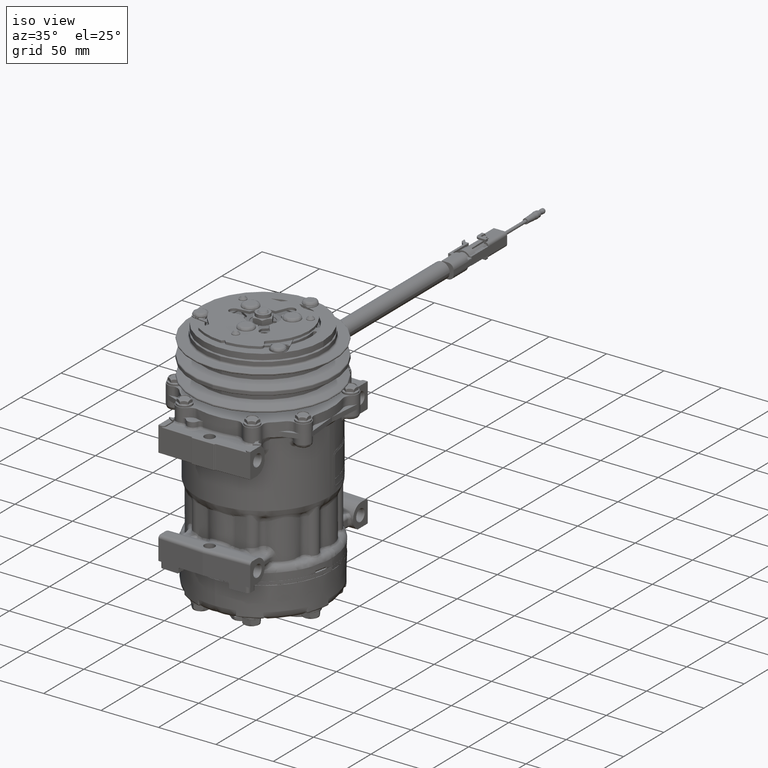
[diagram: clean part render]
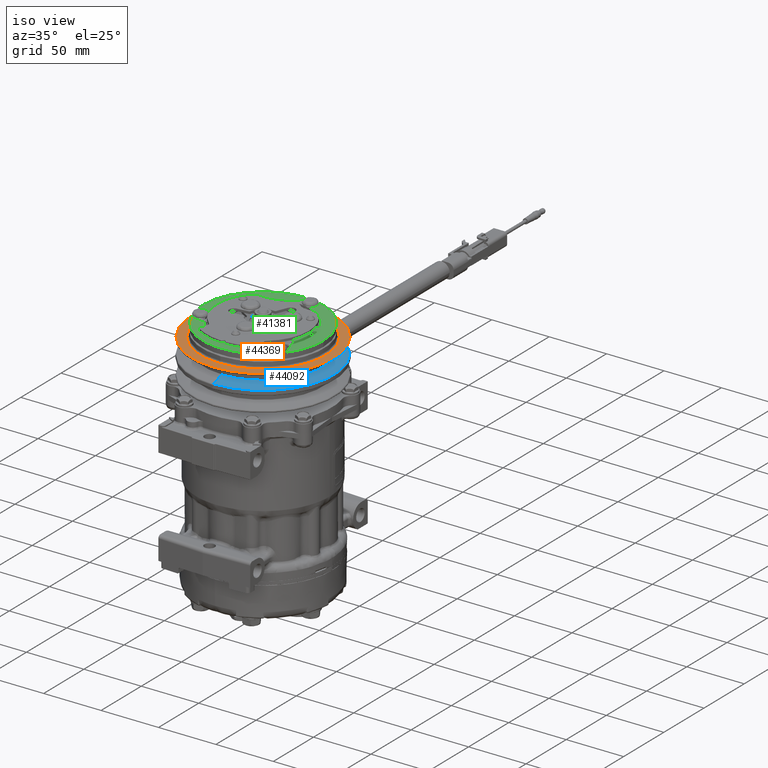
[diagram: same view with three faces highlighted in distinct colors, each labeled with its STEP entity id]
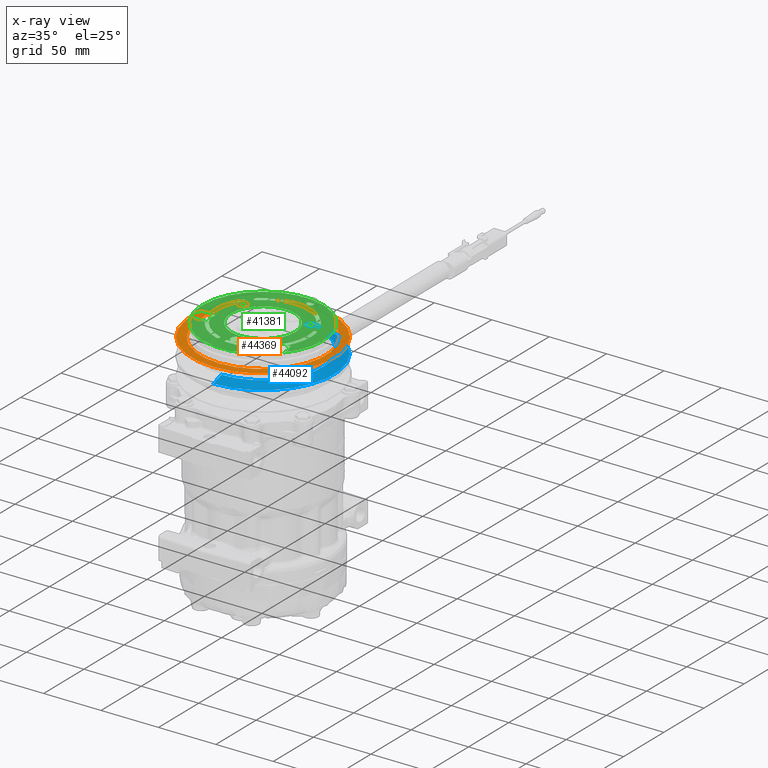
[diagram: x-ray of the same camera — body ghosted, the three highlighted faces saturated]
A machine part, iso view with three faces highlighted in distinct colors.
The next image is the same camera in x-ray (body ghosted, the three faces saturated) — at least one of them is partly hidden behind the body in this view.
Their STEP definitions:

[orange] entity #44369 — the highlighted planar face has unit normal (-0, -0, 1).
#34600 = EDGE_CURVE ( 'NONE', #34601, #34602, #100234, .T. ) ;
#34601 = VERTEX_POINT ( 'NONE', #100224 ) ;
#34602 = VERTEX_POINT ( 'NONE', #100222 ) ;
#34646 = EDGE_CURVE ( 'NONE', #34648, #34650, #100335, .T. ) ;
#34648 = VERTEX_POINT ( 'NONE', #100326 ) ;
#34650 = VERTEX_POINT ( 'NONE', #100323 ) ;
#44369 = ADVANCED_FACE ( 'NONE', ( #132145, #132135 ), #132134, .T. ) ;
#44372 = EDGE_LOOP ( 'NONE', ( #44378, #44415 ) ) ;
#44378 = ORIENTED_EDGE ( 'NONE', *, *, #44413, .T. ) ;
#44391 = EDGE_CURVE ( 'NONE', #34650, #34648, #132093, .T. ) ;
#44413 = EDGE_CURVE ( 'NONE', #34602, #34601, #132275, .T. ) ;
#44415 = ORIENTED_EDGE ( 'NONE', *, *, #34600, .T. ) ;
#44417 = EDGE_LOOP ( 'NONE', ( #44423, #44657 ) ) ;
#44423 = ORIENTED_EDGE ( 'NONE', *, *, #34646, .F. ) ;
#44657 = ORIENTED_EDGE ( 'NONE', *, *, #44391, .F. ) ;
#100222 = CARTESIAN_POINT ( 'NONE',  ( 1.018713123910724500, -54.50011513830195000, 106.4531580153178400 ) ) ;
#100224 = CARTESIAN_POINT ( 'NONE',  ( 1.018713123910717900, 54.49988486169805700, 106.4531580153180800 ) ) ;
#100227 = DIRECTION ( 'NONE',  ( 0.0000000000000000000, -1.000000000000000000, -2.291744775602386400E-015 ) ) ;
#100229 = DIRECTION ( 'NONE',  ( 3.491483361109382100E-015, 2.358328250533916200E-015, -1.000000000000000000 ) ) ;
#100231 = CARTESIAN_POINT ( 'NONE',  ( 1.018713123910719400, -0.0001151383019482032900, 106.4531580153179700 ) ) ;
#100233 = AXIS2_PLACEMENT_3D ( 'NONE', #100231, #100229, #100227 ) ;
#100234 = CIRCLE ( 'NONE', #100233, 54.50000000000002100 ) ;
#100323 = CARTESIAN_POINT ( 'NONE',  ( 1.018713123910711200, 62.09988486169804400, 106.4531580153181700 ) ) ;
#100326 = CARTESIAN_POINT ( 'NONE',  ( 1.018713123910719400, -62.10011513830193800, 106.4531580153178700 ) ) ;
#100328 = DIRECTION ( 'NONE',  ( 0.0000000000000000000, -1.000000000000000000, -2.458223283187746400E-015 ) ) ;
#100330 = DIRECTION ( 'NONE',  ( 3.491483361109382100E-015, 2.358328250533916200E-015, -1.000000000000000000 ) ) ;
#100332 = CARTESIAN_POINT ( 'NONE',  ( 1.018713123910719400, -0.0001151383019482032900, 106.4531580153180100 ) ) ;
#100333 = AXIS2_PLACEMENT_3D ( 'NONE', #100332, #100330, #100328 ) ;
#100335 = CIRCLE ( 'NONE', #100333, 62.09999999999998700 ) ;
#132093 = CIRCLE ( 'NONE', #132204, 62.09999999999998700 ) ;
#132126 = DIRECTION ( 'NONE',  ( -8.234063846773366700E-030, 1.000000000000000000, 2.358328250533916200E-015 ) ) ;
#132127 = DIRECTION ( 'NONE',  ( -3.491483361109382100E-015, -2.358328250533916200E-015, 1.000000000000000000 ) ) ;
#132129 = CARTESIAN_POINT ( 'NONE',  ( 1.018713123910719400, -54.50011513830194300, 106.4531580153178500 ) ) ;
#132131 = AXIS2_PLACEMENT_3D ( 'NONE', #132129, #132127, #132126 ) ;
#132134 = PLANE ( 'NONE',  #132131 ) ;
#132135 = FACE_OUTER_BOUND ( 'NONE', #44417, .T. ) ;
#132145 = FACE_BOUND ( 'NONE', #44372, .T. ) ;
#132152 = CARTESIAN_POINT ( 'NONE',  ( 1.018713123910719400, -0.0001151383019482032900, 106.4531580153179700 ) ) ;
#132199 = DIRECTION ( 'NONE',  ( 0.0000000000000000000, -1.000000000000000000, -2.458223283187746400E-015 ) ) ;
#132200 = DIRECTION ( 'NONE',  ( 3.491483361109382100E-015, 2.358328250533916200E-015, -1.000000000000000000 ) ) ;
#132202 = CARTESIAN_POINT ( 'NONE',  ( 1.018713123910719400, -0.0001151383019482032900, 106.4531580153180100 ) ) ;
#132204 = AXIS2_PLACEMENT_3D ( 'NONE', #132202, #132200, #132199 ) ;
#132252 = DIRECTION ( 'NONE',  ( 0.0000000000000000000, -1.000000000000000000, -2.291744775602386400E-015 ) ) ;
#132254 = DIRECTION ( 'NONE',  ( 3.491483361109382100E-015, 2.358328250533916200E-015, -1.000000000000000000 ) ) ;
#132274 = AXIS2_PLACEMENT_3D ( 'NONE', #132152, #132254, #132252 ) ;
#132275 = CIRCLE ( 'NONE', #132274, 54.50000000000002100 ) ;

[blue] entity #44092 — the highlighted conical surface has half-angle 72 deg.
#44092 = ADVANCED_FACE ( 'NONE', ( #131161 ), #131330, .T. ) ;
#44096 = EDGE_LOOP ( 'NONE', ( #44135, #44215, #44219, #44224 ) ) ;
#44135 = ORIENTED_EDGE ( 'NONE', *, *, #44848, .F. ) ;
#44215 = ORIENTED_EDGE ( 'NONE', *, *, #46504, .T. ) ;
#44219 = ORIENTED_EDGE ( 'NONE', *, *, #44828, .T. ) ;
#44224 = ORIENTED_EDGE ( 'NONE', *, *, #44281, .F. ) ;
#44281 = EDGE_CURVE ( 'NONE', #44837, #44845, #131830, .T. ) ;
#44828 = EDGE_CURVE ( 'NONE', #46507, #44845, #134158, .T. ) ;
#44837 = VERTEX_POINT ( 'NONE', #134217 ) ;
#44845 = VERTEX_POINT ( 'NONE', #134200 ) ;
#44848 = EDGE_CURVE ( 'NONE', #46505, #44837, #134199, .T. ) ;
#46504 = EDGE_CURVE ( 'NONE', #46505, #46507, #136910, .T. ) ;
#46505 = VERTEX_POINT ( 'NONE', #136906 ) ;
#46507 = VERTEX_POINT ( 'NONE', #136905 ) ;
#131161 = FACE_OUTER_BOUND ( 'NONE', #44096, .T. ) ;
#131164 = CARTESIAN_POINT ( 'NONE',  ( 1.018713123910775000, -0.0001151383018926921400, 93.17767200360782500 ) ) ;
#131326 = DIRECTION ( 'NONE',  ( 0.0000000000000000000, -1.000000000000000000, -2.469796047716656600E-015 ) ) ;
#131327 = DIRECTION ( 'NONE',  ( 3.491483361109382100E-015, 2.358328250533916200E-015, -1.000000000000000000 ) ) ;
#131329 = AXIS2_PLACEMENT_3D ( 'NONE', #131164, #131327, #131326 ) ;
#131330 = CONICAL_SURFACE ( 'NONE', #131329, 61.80901699437499300, 1.256637061435923000 ) ;
#131824 = DIRECTION ( 'NONE',  ( 0.0000000000000000000, -1.000000000000000000, -2.469796047716656600E-015 ) ) ;
#131825 = DIRECTION ( 'NONE',  ( 3.491483361109382100E-015, 2.358328250533916200E-015, -1.000000000000000000 ) ) ;
#131826 = CARTESIAN_POINT ( 'NONE',  ( 1.018713123910775000, -0.0001151383018926921400, 93.17767200360782500 ) ) ;
#131828 = AXIS2_PLACEMENT_3D ( 'NONE', #131826, #131825, #131824 ) ;
#131830 = CIRCLE ( 'NONE', #131828, 61.80901699437499300 ) ;
#134155 = DIRECTION ( 'NONE',  ( 1.078927694160149300E-015, -0.9510565162951545300, -0.3090169943749441200 ) ) ;
#134156 = VECTOR ( 'NONE', #134155, 1000.000000000000200 ) ;
#134157 = CARTESIAN_POINT ( 'NONE',  ( 1.018713123910775000, -61.80913213267688600, 93.17767200360766800 ) ) ;
#134158 = LINE ( 'NONE', #134157, #134156 ) ;
#134196 = DIRECTION ( 'NONE',  ( 9.624607088902112800E-016, 0.9510565162951560800, -0.3090169943749397400 ) ) ;
#134197 = VECTOR ( 'NONE', #134196, 999.9999999999998900 ) ;
#134198 = CARTESIAN_POINT ( 'NONE',  ( 1.018713123910767400, 61.80890185607309900, 93.17767200360798100 ) ) ;
#134199 = LINE ( 'NONE', #134198, #134197 ) ;
#134200 = CARTESIAN_POINT ( 'NONE',  ( 1.018713123910775000, -61.80913213267688600, 93.17767200360766800 ) ) ;
#134217 = CARTESIAN_POINT ( 'NONE',  ( 1.018713123910765800, 61.80890185607309900, 93.17767200360798100 ) ) ;
#136852 = CARTESIAN_POINT ( 'NONE',  ( 1.018713123910775000, -0.0001151383018926921400, 96.41501767973504400 ) ) ;
#136905 = CARTESIAN_POINT ( 'NONE',  ( 1.018713123910775000, -51.84560664111447900, 96.41501767973491600 ) ) ;
#136906 = CARTESIAN_POINT ( 'NONE',  ( 1.018713123910762300, 51.84537636451069900, 96.41501767973515800 ) ) ;
#136907 = DIRECTION ( 'NONE',  ( 0.0000000000000000000, -1.000000000000000000, -2.409082962663289000E-015 ) ) ;
#136908 = DIRECTION ( 'NONE',  ( 3.491483361109382100E-015, 2.358328250533916200E-015, -1.000000000000000000 ) ) ;
#136909 = AXIS2_PLACEMENT_3D ( 'NONE', #136852, #136908, #136907 ) ;
#136910 = CIRCLE ( 'NONE', #136909, 51.84549150281258500 ) ;

[green] entity #41381 — the highlighted planar face has unit normal (-0, 0, -1).
#6709 = CARTESIAN_POINT ( 'NONE',  ( 5.166353525801574700, -34.00011513829900900, 117.5431580153175000 ) ) ;
#6714 = CARTESIAN_POINT ( 'NONE',  ( 5.166353525801574700, -34.00011513829900900, 117.5431580153175000 ) ) ;
#6715 = CARTESIAN_POINT ( 'NONE',  ( 5.166353525801577400, -42.29539594206207900, 117.5431580153173200 ) ) ;
#6716 = CARTESIAN_POINT ( 'NONE',  ( -3.128927277961499600, -42.29539594206207900, 117.5431580153173200 ) ) ;
#6717 = CARTESIAN_POINT ( 'NONE',  ( -3.128927277961498700, -34.00011513829900900, 117.5431580153175000 ) ) ;
#6720 =( BOUNDED_CURVE ( )  B_SPLINE_CURVE ( 3, ( #6717, #6716, #6715, #6714 ),
 .UNSPECIFIED., .F., .T. ) 
 B_SPLINE_CURVE_WITH_KNOTS ( ( 4, 4 ),
 ( 0.0000000000000000000, 1.000000000000000000 ),
 .UNSPECIFIED. ) 
 CURVE ( )  GEOMETRIC_REPRESENTATION_ITEM ( )  RATIONAL_B_SPLINE_CURVE ( ( 1.000000000000000000, 0.3333333333333333700, 0.3333333333333333700, 1.000000000000000000 ) ) 
 REPRESENTATION_ITEM ( '' )  );
#6791 = CARTESIAN_POINT ( 'NONE',  ( -32.57379100663286000, 16.99988486170064700, 117.5431580153176400 ) ) ;
#6829 = CARTESIAN_POINT ( 'NONE',  ( -3.128927277961498700, -34.00011513829900900, 117.5431580153175000 ) ) ;
#6987 = CARTESIAN_POINT ( 'NONE',  ( -24.27851020286978600, 16.99988486170064700, 117.5431580153175900 ) ) ;
#6988 = CARTESIAN_POINT ( 'NONE',  ( -24.27851020286978900, 8.704604057937549700, 117.5431580153173200 ) ) ;
#6989 = CARTESIAN_POINT ( 'NONE',  ( -32.57379100663286000, 8.704604057937549700, 117.5431580153173200 ) ) ;
#6990 = CARTESIAN_POINT ( 'NONE',  ( -32.57379100663286000, 16.99988486170064700, 117.5431580153176400 ) ) ;
#6991 =( BOUNDED_CURVE ( )  B_SPLINE_CURVE ( 3, ( #6990, #6989, #6988, #6987 ),
 .UNSPECIFIED., .F., .T. ) 
 B_SPLINE_CURVE_WITH_KNOTS ( ( 4, 4 ),
 ( 0.0000000000000000000, 1.000000000000000000 ),
 .UNSPECIFIED. ) 
 CURVE ( )  GEOMETRIC_REPRESENTATION_ITEM ( )  RATIONAL_B_SPLINE_CURVE ( ( 1.000000000000000000, 0.3333333333333333700, 0.3333333333333333700, 1.000000000000000000 ) ) 
 REPRESENTATION_ITEM ( '' )  );
#6993 = CARTESIAN_POINT ( 'NONE',  ( -24.27851020286978600, 16.99988486170064700, 117.5431580153175900 ) ) ;
#7102 = CARTESIAN_POINT ( 'NONE',  ( 26.31593645070917000, 16.99988486170100900, 117.5431580153175000 ) ) ;
#7287 = CARTESIAN_POINT ( 'NONE',  ( 34.61121725447224400, 16.99988486170100900, 117.5431580153174500 ) ) ;
#7288 = CARTESIAN_POINT ( 'NONE',  ( 34.61121725447225100, 8.704604057937924500, 117.5431580153173300 ) ) ;
#7289 = CARTESIAN_POINT ( 'NONE',  ( 26.31593645070916700, 8.704604057937924500, 117.5431580153173300 ) ) ;
#7290 = CARTESIAN_POINT ( 'NONE',  ( 26.31593645070917000, 16.99988486170100900, 117.5431580153175000 ) ) ;
#7291 =( BOUNDED_CURVE ( )  B_SPLINE_CURVE ( 3, ( #7290, #7289, #7288, #7287 ),
 .UNSPECIFIED., .F., .T. ) 
 B_SPLINE_CURVE_WITH_KNOTS ( ( 4, 4 ),
 ( 0.0000000000000000000, 1.000000000000000000 ),
 .UNSPECIFIED. ) 
 CURVE ( )  GEOMETRIC_REPRESENTATION_ITEM ( )  RATIONAL_B_SPLINE_CURVE ( ( 1.000000000000000000, 0.3333333333333333700, 0.3333333333333333700, 1.000000000000000000 ) ) 
 REPRESENTATION_ITEM ( '' )  );
#7402 = CARTESIAN_POINT ( 'NONE',  ( 34.61121725447224400, 16.99988486170100900, 117.5431580153174500 ) ) ;
#13302 = EDGE_CURVE ( 'NONE', #13433, #13305, #6720, .T. ) ;
#13305 = VERTEX_POINT ( 'NONE', #6709 ) ;
#13387 = VERTEX_POINT ( 'NONE', #6791 ) ;
#13433 = VERTEX_POINT ( 'NONE', #6829 ) ;
#13602 = EDGE_CURVE ( 'NONE', #13387, #13606, #6991, .T. ) ;
#13606 = VERTEX_POINT ( 'NONE', #6993 ) ;
#13756 = VERTEX_POINT ( 'NONE', #7102 ) ;
#13901 = EDGE_CURVE ( 'NONE', #13756, #13953, #7291, .T. ) ;
#13953 = VERTEX_POINT ( 'NONE', #7402 ) ;
#38061 = VERTEX_POINT ( 'NONE', #112123 ) ;
#38168 = VERTEX_POINT ( 'NONE', #113027 ) ;
#38284 = VERTEX_POINT ( 'NONE', #113529 ) ;
#38287 = VERTEX_POINT ( 'NONE', #113527 ) ;
#38524 = VERTEX_POINT ( 'NONE', #114376 ) ;
#38525 = VERTEX_POINT ( 'NONE', #114373 ) ;
#39035 = VERTEX_POINT ( 'NONE', #115448 ) ;
#39314 = VERTEX_POINT ( 'NONE', #116717 ) ;
#39402 = EDGE_CURVE ( 'NONE', #13953, #13756, #117080, .T. ) ;
#39503 = EDGE_CURVE ( 'NONE', #45890, #45887, #117482, .T. ) ;
#39518 = VERTEX_POINT ( 'NONE', #117445 ) ;
#39592 = EDGE_CURVE ( 'NONE', #13305, #13433, #117627, .T. ) ;
#39646 = EDGE_CURVE ( 'NONE', #39817, #39518, #117789, .T. ) ;
#39649 = EDGE_CURVE ( 'NONE', #39518, #39778, #117777, .T. ) ;
#39751 = EDGE_CURVE ( 'NONE', #39778, #45781, #118224, .T. ) ;
#39778 = VERTEX_POINT ( 'NONE', #118360 ) ;
#39817 = VERTEX_POINT ( 'NONE', #118661 ) ;
#39845 = EDGE_CURVE ( 'NONE', #45552, #39916, #118813, .T. ) ;
#39893 = EDGE_CURVE ( 'NONE', #45883, #39817, #119057, .T. ) ;
#39916 = VERTEX_POINT ( 'NONE', #119092 ) ;
#39939 = VERTEX_POINT ( 'NONE', #119319 ) ;
#39951 = EDGE_CURVE ( 'NONE', #13606, #13387, #119556, .T. ) ;
#39969 = EDGE_CURVE ( 'NONE', #39939, #45723, #119734, .T. ) ;
#39992 = EDGE_CURVE ( 'NONE', #45710, #45717, #119799, .T. ) ;
#40052 = VERTEX_POINT ( 'NONE', #119957 ) ;
#40063 = EDGE_CURVE ( 'NONE', #45726, #40278, #120129, .T. ) ;
#40125 = EDGE_CURVE ( 'NONE', #45687, #40245, #120341, .T. ) ;
#40139 = VERTEX_POINT ( 'NONE', #120550 ) ;
#40245 = VERTEX_POINT ( 'NONE', #120783 ) ;
#40263 = EDGE_CURVE ( 'NONE', #39314, #40139, #120963, .T. ) ;
#40278 = VERTEX_POINT ( 'NONE', #121016 ) ;
#40298 = EDGE_CURVE ( 'NONE', #39916, #45740, #120987, .T. ) ;
#40365 = EDGE_CURVE ( 'NONE', #40498, #38061, #121279, .T. ) ;
#40406 = EDGE_CURVE ( 'NONE', #38061, #40407, #121357, .T. ) ;
#40407 = VERTEX_POINT ( 'NONE', #121351 ) ;
#40416 = EDGE_CURVE ( 'NONE', #40245, #38168, #121335, .T. ) ;
#40498 = VERTEX_POINT ( 'NONE', #121594 ) ;
#40517 = EDGE_CURVE ( 'NONE', #38284, #40548, #121557, .T. ) ;
#40532 = EDGE_CURVE ( 'NONE', #40052, #45762, #121532, .T. ) ;
#40548 = VERTEX_POINT ( 'NONE', #121610 ) ;
#40563 = EDGE_CURVE ( 'NONE', #45676, #38287, #121715, .T. ) ;
#40589 = EDGE_CURVE ( 'NONE', #38287, #40498, #121803, .T. ) ;
#41035 = EDGE_CURVE ( 'NONE', #38525, #41038, #124433, .T. ) ;
#41038 = VERTEX_POINT ( 'NONE', #124428 ) ;
#41139 = EDGE_CURVE ( 'NONE', #40407, #45684, #124525, .T. ) ;
#41170 = EDGE_CURVE ( 'NONE', #45618, #38525, #124509, .T. ) ;
#41208 = EDGE_CURVE ( 'NONE', #38524, #45660, #124652, .T. ) ;
#41213 = EDGE_CURVE ( 'NONE', #40548, #45671, #124637, .T. ) ;
#41240 = EDGE_CURVE ( 'NONE', #45675, #38284, #124706, .T. ) ;
#41245 = EDGE_CURVE ( 'NONE', #38168, #40052, #124695, .T. ) ;
#41271 = EDGE_CURVE ( 'NONE', #45692, #45613, #124766, .T. ) ;
#41318 = EDGE_CURVE ( 'NONE', #40139, #38524, #124813, .T. ) ;
#41345 = EDGE_CURVE ( 'NONE', #40278, #39314, #124879, .T. ) ;
#41381 = ADVANCED_FACE ( 'NONE', ( #124939, #124937, #124935, #124933, #124932, #124930, #124929 ), #124924, .F. ) ;
#41383 = EDGE_LOOP ( 'NONE', ( #41399, #41402, #41488, #41490, #41492, #41571, #41602, #41635, #41768, #41570, #41600, #41622, #41667, #41751, #41616, #41618, #41629, #41704, #41641, #41647, #41685, #41688, #41607, #41609, #41540, #41541, #41545, #41550, #41755, #41761, #41763, #41736, #41740, #41744, #41783 ) ) ;
#41395 = VERTEX_POINT ( 'NONE', #124896 ) ;
#41399 = ORIENTED_EDGE ( 'NONE', *, *, #41465, .F. ) ;
#41402 = ORIENTED_EDGE ( 'NONE', *, *, #41504, .F. ) ;
#41440 = EDGE_CURVE ( 'NONE', #45742, #39939, #124963, .T. ) ;
#41465 = EDGE_CURVE ( 'NONE', #41395, #39035, #125016, .T. ) ;
#41488 = ORIENTED_EDGE ( 'NONE', *, *, #41035, .F. ) ;
#41490 = ORIENTED_EDGE ( 'NONE', *, *, #41170, .F. ) ;
#41492 = ORIENTED_EDGE ( 'NONE', *, *, #45616, .F. ) ;
#41504 = EDGE_CURVE ( 'NONE', #41038, #41395, #125094, .T. ) ;
#41525 = EDGE_CURVE ( 'NONE', #39035, #45603, #125072, .T. ) ;
#41530 = ORIENTED_EDGE ( 'NONE', *, *, #39951, .F. ) ;
#41535 = EDGE_LOOP ( 'NONE', ( #41715, #41719, #41590, #41594, #41673 ) ) ;
#41540 = ORIENTED_EDGE ( 'NONE', *, *, #40263, .F. ) ;
#41541 = ORIENTED_EDGE ( 'NONE', *, *, #41345, .F. ) ;
#41545 = ORIENTED_EDGE ( 'NONE', *, *, #40063, .F. ) ;
#41550 = ORIENTED_EDGE ( 'NONE', *, *, #45732, .F. ) ;
#41570 = ORIENTED_EDGE ( 'NONE', *, *, #41240, .F. ) ;
#41571 = ORIENTED_EDGE ( 'NONE', *, *, #41271, .F. ) ;
#41590 = ORIENTED_EDGE ( 'NONE', *, *, #39751, .F. ) ;
#41594 = ORIENTED_EDGE ( 'NONE', *, *, #39649, .F. ) ;
#41600 = ORIENTED_EDGE ( 'NONE', *, *, #45666, .F. ) ;
#41602 = ORIENTED_EDGE ( 'NONE', *, *, #45766, .F. ) ;
#41607 = ORIENTED_EDGE ( 'NONE', *, *, #41208, .F. ) ;
#41609 = ORIENTED_EDGE ( 'NONE', *, *, #41318, .F. ) ;
#41616 = ORIENTED_EDGE ( 'NONE', *, *, #40589, .F. ) ;
#41618 = ORIENTED_EDGE ( 'NONE', *, *, #40563, .F. ) ;
#41622 = ORIENTED_EDGE ( 'NONE', *, *, #41139, .F. ) ;
#41629 = ORIENTED_EDGE ( 'NONE', *, *, #45655, .F. ) ;
#41635 = ORIENTED_EDGE ( 'NONE', *, *, #41213, .F. ) ;
#41641 = ORIENTED_EDGE ( 'NONE', *, *, #41245, .F. ) ;
#41647 = ORIENTED_EDGE ( 'NONE', *, *, #40416, .F. ) ;
#41656 = ORIENTED_EDGE ( 'NONE', *, *, #13602, .F. ) ;
#41660 = EDGE_LOOP ( 'NONE', ( #41656, #41530 ) ) ;
#41667 = ORIENTED_EDGE ( 'NONE', *, *, #40406, .F. ) ;
#41673 = ORIENTED_EDGE ( 'NONE', *, *, #39646, .F. ) ;
#41678 = EDGE_LOOP ( 'NONE', ( #41680, #41869 ) ) ;
#41680 = ORIENTED_EDGE ( 'NONE', *, *, #39503, .F. ) ;
#41685 = ORIENTED_EDGE ( 'NONE', *, *, #40125, .F. ) ;
#41688 = ORIENTED_EDGE ( 'NONE', *, *, #45653, .F. ) ;
#41704 = ORIENTED_EDGE ( 'NONE', *, *, #40532, .F. ) ;
#41715 = ORIENTED_EDGE ( 'NONE', *, *, #39893, .F. ) ;
#41719 = ORIENTED_EDGE ( 'NONE', *, *, #45808, .F. ) ;
#41721 = EDGE_LOOP ( 'NONE', ( #41724, #41726 ) ) ;
#41724 = ORIENTED_EDGE ( 'NONE', *, *, #13302, .F. ) ;
#41726 = ORIENTED_EDGE ( 'NONE', *, *, #39592, .F. ) ;
#41727 = EDGE_LOOP ( 'NONE', ( #41729, #41731 ) ) ;
#41729 = ORIENTED_EDGE ( 'NONE', *, *, #13901, .F. ) ;
#41731 = ORIENTED_EDGE ( 'NONE', *, *, #39402, .F. ) ;
#41736 = ORIENTED_EDGE ( 'NONE', *, *, #40298, .F. ) ;
#41740 = ORIENTED_EDGE ( 'NONE', *, *, #39845, .F. ) ;
#41744 = ORIENTED_EDGE ( 'NONE', *, *, #45622, .F. ) ;
#41751 = ORIENTED_EDGE ( 'NONE', *, *, #40365, .F. ) ;
#41755 = ORIENTED_EDGE ( 'NONE', *, *, #39969, .F. ) ;
#41761 = ORIENTED_EDGE ( 'NONE', *, *, #41440, .F. ) ;
#41763 = ORIENTED_EDGE ( 'NONE', *, *, #45744, .F. ) ;
#41768 = ORIENTED_EDGE ( 'NONE', *, *, #40517, .F. ) ;
#41783 = ORIENTED_EDGE ( 'NONE', *, *, #41525, .F. ) ;
#41785 = EDGE_LOOP ( 'NONE', ( #41788, #41791 ) ) ;
#41788 = ORIENTED_EDGE ( 'NONE', *, *, #39992, .F. ) ;
#41791 = ORIENTED_EDGE ( 'NONE', *, *, #45708, .F. ) ;
#41869 = ORIENTED_EDGE ( 'NONE', *, *, #45917, .F. ) ;
#45552 = VERTEX_POINT ( 'NONE', #135356 ) ;
#45603 = VERTEX_POINT ( 'NONE', #135254 ) ;
#45613 = VERTEX_POINT ( 'NONE', #135557 ) ;
#45616 = EDGE_CURVE ( 'NONE', #45613, #45618, #135556, .T. ) ;
#45618 = VERTEX_POINT ( 'NONE', #135551 ) ;
#45622 = EDGE_CURVE ( 'NONE', #45603, #45552, #135549, .T. ) ;
#45653 = EDGE_CURVE ( 'NONE', #45660, #45687, #135632, .T. ) ;
#45655 = EDGE_CURVE ( 'NONE', #45762, #45676, #135694, .T. ) ;
#45660 = VERTEX_POINT ( 'NONE', #135688 ) ;
#45666 = EDGE_CURVE ( 'NONE', #45684, #45675, #135682, .T. ) ;
#45671 = VERTEX_POINT ( 'NONE', #135670 ) ;
#45675 = VERTEX_POINT ( 'NONE', #135720 ) ;
#45676 = VERTEX_POINT ( 'NONE', #135719 ) ;
#45684 = VERTEX_POINT ( 'NONE', #135707 ) ;
#45687 = VERTEX_POINT ( 'NONE', #135701 ) ;
#45692 = VERTEX_POINT ( 'NONE', #135768 ) ;
#45708 = EDGE_CURVE ( 'NONE', #45717, #45710, #135780, .T. ) ;
#45710 = VERTEX_POINT ( 'NONE', #135775 ) ;
#45717 = VERTEX_POINT ( 'NONE', #135835 ) ;
#45723 = VERTEX_POINT ( 'NONE', #135825 ) ;
#45726 = VERTEX_POINT ( 'NONE', #135820 ) ;
#45732 = EDGE_CURVE ( 'NONE', #45723, #45726, #135813, .T. ) ;
#45740 = VERTEX_POINT ( 'NONE', #135849 ) ;
#45742 = VERTEX_POINT ( 'NONE', #135848 ) ;
#45744 = EDGE_CURVE ( 'NONE', #45740, #45742, #135846, .T. ) ;
#45762 = VERTEX_POINT ( 'NONE', #135881 ) ;
#45766 = EDGE_CURVE ( 'NONE', #45671, #45692, #135878, .T. ) ;
#45781 = VERTEX_POINT ( 'NONE', #135903 ) ;
#45808 = EDGE_CURVE ( 'NONE', #45781, #45883, #135974, .T. ) ;
#45883 = VERTEX_POINT ( 'NONE', #136089 ) ;
#45887 = VERTEX_POINT ( 'NONE', #136087 ) ;
#45890 = VERTEX_POINT ( 'NONE', #136086 ) ;
#45917 = EDGE_CURVE ( 'NONE', #45887, #45890, #136113, .T. ) ;
#112123 = CARTESIAN_POINT ( 'NONE',  ( -36.67758571891857900, -8.659088488317422600, 117.5431580153176200 ) ) ;
#113027 = CARTESIAN_POINT ( 'NONE',  ( -35.67643434714335600, -19.85346860937120500, 117.5431580153177900 ) ) ;
#113527 = CARTESIAN_POINT ( 'NONE',  ( -34.91163057438840400, -14.38772827127543500, 117.5431580153177900 ) ) ;
#113529 = CARTESIAN_POINT ( 'NONE',  ( -39.83670626523269200, -8.215687572596330300, 117.5431580153179300 ) ) ;
#114373 = CARTESIAN_POINT ( 'NONE',  ( 41.58542316776121300, -33.32568664455562400, 117.5431580153182600 ) ) ;
#114376 = CARTESIAN_POINT ( 'NONE',  ( 39.86869923914176200, -35.31201481598317600, 117.5431580153182600 ) ) ;
#115448 = CARTESIAN_POINT ( 'NONE',  ( 36.47222133236915200, -21.88781185016147600, 117.5431580153181100 ) ) ;
#116717 = CARTESIAN_POINT ( 'NONE',  ( 28.57785620026353600, -31.31507394945229400, 117.5431580153180600 ) ) ;
#117062 = CARTESIAN_POINT ( 'NONE',  ( 26.31593645070917000, 16.99988486170100900, 117.5431580153175000 ) ) ;
#117064 = CARTESIAN_POINT ( 'NONE',  ( 26.31593645070917000, 25.29516566546408600, 117.5431580153173300 ) ) ;
#117066 = CARTESIAN_POINT ( 'NONE',  ( 34.61121725447224400, 25.29516566546408600, 117.5431580153173300 ) ) ;
#117068 = CARTESIAN_POINT ( 'NONE',  ( 34.61121725447224400, 16.99988486170100900, 117.5431580153174500 ) ) ;
#117080 =( BOUNDED_CURVE ( )  B_SPLINE_CURVE ( 3, ( #117068, #117066, #117064, #117062 ),
 .UNSPECIFIED., .F., .F. ) 
 B_SPLINE_CURVE_WITH_KNOTS ( ( 4, 4 ),
 ( 0.0000000000000000000, 1.000000000000000000 ),
 .UNSPECIFIED. ) 
 CURVE ( )  GEOMETRIC_REPRESENTATION_ITEM ( )  RATIONAL_B_SPLINE_CURVE ( ( 1.000000000000000000, 0.3333333333333333700, 0.3333333333333333700, 1.000000000000000000 ) ) 
 REPRESENTATION_ITEM ( '' )  );
#117445 = CARTESIAN_POINT ( 'NONE',  ( -24.92681839062031200, 28.42697775459823700, 117.5431580153179300 ) ) ;
#117463 = DIRECTION ( 'NONE',  ( 1.000000000000000000, 0.0000000000000000000, -7.001402424755441400E-015 ) ) ;
#117465 = DIRECTION ( 'NONE',  ( 6.845255018948190100E-015, -1.379966655096881200E-015, 1.000000000000000000 ) ) ;
#117467 = CARTESIAN_POINT ( 'NONE',  ( 1.018713123910744500, -0.0001151383020314700200, 117.5431580153179600 ) ) ;
#117468 = AXIS2_PLACEMENT_3D ( 'NONE', #117467, #117465, #117463 ) ;
#117482 = CIRCLE ( 'NONE', #117468, 27.75001600000001300 ) ;
#117612 = CARTESIAN_POINT ( 'NONE',  ( -3.128927277961498700, -34.00011513829900900, 117.5431580153175000 ) ) ;
#117614 = CARTESIAN_POINT ( 'NONE',  ( -3.128927277961494300, -25.70483433453594200, 117.5431580153173200 ) ) ;
#117616 = CARTESIAN_POINT ( 'NONE',  ( 5.166353525801573800, -25.70483433453594200, 117.5431580153173200 ) ) ;
#117618 = CARTESIAN_POINT ( 'NONE',  ( 5.166353525801574700, -34.00011513829900900, 117.5431580153175000 ) ) ;
#117627 =( BOUNDED_CURVE ( )  B_SPLINE_CURVE ( 3, ( #117618, #117616, #117614, #117612 ),
 .UNSPECIFIED., .F., .T. ) 
 B_SPLINE_CURVE_WITH_KNOTS ( ( 4, 4 ),
 ( 0.0000000000000000000, 1.000000000000000000 ),
 .UNSPECIFIED. ) 
 CURVE ( )  GEOMETRIC_REPRESENTATION_ITEM ( )  RATIONAL_B_SPLINE_CURVE ( ( 1.000000000000000000, 0.3333333333333333700, 0.3333333333333333700, 1.000000000000000000 ) ) 
 REPRESENTATION_ITEM ( '' )  );
#117771 = DIRECTION ( 'NONE',  ( 1.000000000000000000, 0.0000000000000000000, 0.0000000000000000000 ) ) ;
#117773 = DIRECTION ( 'NONE',  ( 0.0000000000000000000, 0.0000000000000000000, -1.000000000000000000 ) ) ;
#117775 = CARTESIAN_POINT ( 'NONE',  ( 0.9811109971933085200, -0.1866385921005797600, 117.5431580153179300 ) ) ;
#117776 = AXIS2_PLACEMENT_3D ( 'NONE', #117775, #117773, #117771 ) ;
#117777 = CIRCLE ( 'NONE', #117776, 38.59999800000003500 ) ;
#117783 = DIRECTION ( 'NONE',  ( 1.000000000000000000, 0.0000000000000000000, 0.0000000000000000000 ) ) ;
#117785 = DIRECTION ( 'NONE',  ( 0.0000000000000000000, 0.0000000000000000000, 1.000000000000000000 ) ) ;
#117787 = AXIS2_PLACEMENT_3D ( 'NONE', #117804, #117785, #117783 ) ;
#117789 = CIRCLE ( 'NONE', #117787, 1.500000000000004900 ) ;
#117804 = CARTESIAN_POINT ( 'NONE',  ( -25.93360326355517700, 29.53890590858521000, 117.5431580153179300 ) ) ;
#118222 = AXIS2_PLACEMENT_3D ( 'NONE', #118305, #118303, #118302 ) ;
#118224 = CIRCLE ( 'NONE', #118222, 1.500000000000029100 ) ;
#118302 = DIRECTION ( 'NONE',  ( 1.000000000000000000, 0.0000000000000000000, 0.0000000000000000000 ) ) ;
#118303 = DIRECTION ( 'NONE',  ( 0.0000000000000000000, 0.0000000000000000000, 1.000000000000000000 ) ) ;
#118305 = CARTESIAN_POINT ( 'NONE',  ( 37.31057696525601800, 16.78921903204846800, 117.5431580153179300 ) ) ;
#118360 = CARTESIAN_POINT ( 'NONE',  ( 35.95161924870600200, 16.15421200482025600, 117.5431580153179300 ) ) ;
#118661 = CARTESIAN_POINT ( 'NONE',  ( -26.94038806874338500, 30.65083412391311800, 117.5431580153179300 ) ) ;
#118806 = DIRECTION ( 'NONE',  ( 1.000000000000000000, 0.0000000000000000000, 0.0000000000000000000 ) ) ;
#118808 = DIRECTION ( 'NONE',  ( 0.0000000000000000000, 0.0000000000000000000, 1.000000000000000000 ) ) ;
#118810 = CARTESIAN_POINT ( 'NONE',  ( 40.18154482573565600, 8.259415353623039000, 117.5431580153179300 ) ) ;
#118811 = AXIS2_PLACEMENT_3D ( 'NONE', #118810, #118808, #118806 ) ;
#118813 = CIRCLE ( 'NONE', #118811, 1.499999999999966700 ) ;
#119050 = DIRECTION ( 'NONE',  ( 1.000000000000000000, 0.0000000000000000000, 0.0000000000000000000 ) ) ;
#119052 = DIRECTION ( 'NONE',  ( 0.0000000000000000000, 0.0000000000000000000, 1.000000000000000000 ) ) ;
#119054 = CARTESIAN_POINT ( 'NONE',  ( 0.9811109971933085200, -0.1866385921005797600, 117.5431580153179300 ) ) ;
#119056 = AXIS2_PLACEMENT_3D ( 'NONE', #119054, #119052, #119050 ) ;
#119057 = CIRCLE ( 'NONE', #119056, 41.59999799999996400 ) ;
#119092 = CARTESIAN_POINT ( 'NONE',  ( 38.71519435074758800, 7.943478200850395700, 117.5431580153179300 ) ) ;
#119319 = CARTESIAN_POINT ( 'NONE',  ( 26.41278600106116400, -25.95913535797386700, 117.5431580153177300 ) ) ;
#119540 = CARTESIAN_POINT ( 'NONE',  ( -32.57379100663286000, 16.99988486170064700, 117.5431580153176400 ) ) ;
#119542 = CARTESIAN_POINT ( 'NONE',  ( -32.57379100663286000, 25.29516566546369600, 117.5431580153173200 ) ) ;
#119544 = CARTESIAN_POINT ( 'NONE',  ( -24.27851020286978900, 25.29516566546369600, 117.5431580153173200 ) ) ;
#119546 = CARTESIAN_POINT ( 'NONE',  ( -24.27851020286978600, 16.99988486170064700, 117.5431580153175900 ) ) ;
#119556 =( BOUNDED_CURVE ( )  B_SPLINE_CURVE ( 3, ( #119546, #119544, #119542, #119540 ),
 .UNSPECIFIED., .F., .T. ) 
 B_SPLINE_CURVE_WITH_KNOTS ( ( 4, 4 ),
 ( 0.0000000000000000000, 1.000000000000000000 ),
 .UNSPECIFIED. ) 
 CURVE ( )  GEOMETRIC_REPRESENTATION_ITEM ( )  RATIONAL_B_SPLINE_CURVE ( ( 1.000000000000000000, 0.3333333333333333700, 0.3333333333333333700, 1.000000000000000000 ) ) 
 REPRESENTATION_ITEM ( '' )  );
#119677 = CARTESIAN_POINT ( 'NONE',  ( 10.20799498856901300, 45.58285425611291700, 117.5431580153179000 ) ) ;
#119729 = DIRECTION ( 'NONE',  ( 0.3747748227805935400, -0.9271158677370238100, 0.0000000000000000000 ) ) ;
#119730 = VECTOR ( 'NONE', #119729, 1000.000000000000100 ) ;
#119732 = CARTESIAN_POINT ( 'NONE',  ( 26.41278600106116400, -25.95913535797386700, 117.5431580153177300 ) ) ;
#119734 = LINE ( 'NONE', #119732, #119730 ) ;
#119777 = DIRECTION ( 'NONE',  ( 0.0000000000000000000, 1.000000000000000000, 5.139921410301794400E-015 ) ) ;
#119795 = DIRECTION ( 'NONE',  ( 0.0000000000000000000, -7.209240419643719900E-015, 1.000000000000000000 ) ) ;
#119797 = AXIS2_PLACEMENT_3D ( 'NONE', #119677, #119795, #119777 ) ;
#119799 = CIRCLE ( 'NONE', #119797, 2.699999999999924700 ) ;
#119957 = CARTESIAN_POINT ( 'NONE',  ( -11.76417427554092000, -39.78610243842845100, 117.5431580153179300 ) ) ;
#120122 = DIRECTION ( 'NONE',  ( 1.000000000000000000, 0.0000000000000000000, 0.0000000000000000000 ) ) ;
#120124 = DIRECTION ( 'NONE',  ( 0.0000000000000000000, 0.0000000000000000000, 1.000000000000000000 ) ) ;
#120126 = CARTESIAN_POINT ( 'NONE',  ( -2.482098254931903300, -40.13680781922657600, 117.5431580153178700 ) ) ;
#120127 = AXIS2_PLACEMENT_3D ( 'NONE', #120126, #120124, #120122 ) ;
#120129 = CIRCLE ( 'NONE', #120127, 1.500000000000012000 ) ;
#120336 = DIRECTION ( 'NONE',  ( 0.9904099050844518100, -0.1381601241697733300, -7.930163759816348000E-015 ) ) ;
#120338 = VECTOR ( 'NONE', #120336, 1000.000000000000000 ) ;
#120340 = CARTESIAN_POINT ( 'NONE',  ( -43.03162298878292100, -21.90448694134308700, 117.5431580153182000 ) ) ;
#120341 = LINE ( 'NONE', #120340, #120338 ) ;
#120550 = CARTESIAN_POINT ( 'NONE',  ( 29.03620999268548900, -32.44894700644957200, 117.5431580153180600 ) ) ;
#120783 = CARTESIAN_POINT ( 'NONE',  ( -36.09875303965692000, -22.87160789611836300, 117.5431580153179700 ) ) ;
#120958 = DIRECTION ( 'NONE',  ( 0.3747748227805918800, -0.9271158677370244800, 0.0000000000000000000 ) ) ;
#120960 = VECTOR ( 'NONE', #120958, 1000.000000000000100 ) ;
#120962 = CARTESIAN_POINT ( 'NONE',  ( 13.10827861494431300, 6.953480859350519500, 117.5431580153178100 ) ) ;
#120963 = LINE ( 'NONE', #120962, #120960 ) ;
#120987 = CIRCLE ( 'NONE', #120993, 38.59999800000002800 ) ;
#120993 = AXIS2_PLACEMENT_3D ( 'NONE', #121068, #121067, #121065 ) ;
#121016 = CARTESIAN_POINT ( 'NONE',  ( -2.611644698324063100, -41.63120325518193700, 117.5431580153178400 ) ) ;
#121065 = DIRECTION ( 'NONE',  ( 1.000000000000000000, -8.881470070022187000E-015, 0.0000000000000000000 ) ) ;
#121067 = DIRECTION ( 'NONE',  ( 0.0000000000000000000, 0.0000000000000000000, -1.000000000000000000 ) ) ;
#121068 = CARTESIAN_POINT ( 'NONE',  ( 0.9811109971933085200, -0.1866385921005797600, 117.5431580153179300 ) ) ;
#121263 = DIRECTION ( 'NONE',  ( -0.9902933051022315700, 0.1389934166415753000, 0.0000000000000000000 ) ) ;
#121265 = VECTOR ( 'NONE', #121263, 1000.000000000000100 ) ;
#121267 = CARTESIAN_POINT ( 'NONE',  ( -34.15949428222659600, -9.012517245634482400, 117.5431580153181700 ) ) ;
#121279 = LINE ( 'NONE', #121267, #121265 ) ;
#121330 = DIRECTION ( 'NONE',  ( 0.1385767826691824100, 0.9903516927359987700, 0.0000000000000000000 ) ) ;
#121331 = VECTOR ( 'NONE', #121330, 1000.000000000000100 ) ;
#121334 = CARTESIAN_POINT ( 'NONE',  ( -36.09875303965693400, -22.87160789611833400, 117.5431580153181400 ) ) ;
#121335 = LINE ( 'NONE', #121334, #121331 ) ;
#121351 = CARTESIAN_POINT ( 'NONE',  ( -30.65573459858078600, 21.92828501955018800, 117.5431580153177900 ) ) ;
#121352 = DIRECTION ( 'NONE',  ( 1.000000000000000000, 1.776574895410829600E-015, 0.0000000000000000000 ) ) ;
#121353 = DIRECTION ( 'NONE',  ( 0.0000000000000000000, 0.0000000000000000000, -1.000000000000000000 ) ) ;
#121355 = CARTESIAN_POINT ( 'NONE',  ( 0.9811109971933085200, -0.1866385921005797600, 117.5431580153176200 ) ) ;
#121356 = AXIS2_PLACEMENT_3D ( 'NONE', #121355, #121353, #121352 ) ;
#121357 = CIRCLE ( 'NONE', #121356, 38.59999799999995700 ) ;
#121527 = DIRECTION ( 'NONE',  ( 1.000000000000000000, 0.0000000000000000000, 0.0000000000000000000 ) ) ;
#121529 = DIRECTION ( 'NONE',  ( 0.0000000000000000000, 0.0000000000000000000, 1.000000000000000000 ) ) ;
#121530 = CARTESIAN_POINT ( 'NONE',  ( -11.30460863834729700, -38.35823709985106000, 117.5431580153179300 ) ) ;
#121531 = AXIS2_PLACEMENT_3D ( 'NONE', #121530, #121529, #121527 ) ;
#121532 = CIRCLE ( 'NONE', #121531, 1.500000000000010000 ) ;
#121551 = DIRECTION ( 'NONE',  ( -0.9902933051022320100, 0.1389934166415721700, 0.0000000000000000000 ) ) ;
#121553 = VECTOR ( 'NONE', #121551, 1000.000000000000000 ) ;
#121555 = CARTESIAN_POINT ( 'NONE',  ( 0.9959211600244984900, -13.94678397307433400, 117.5431580153182300 ) ) ;
#121557 = LINE ( 'NONE', #121555, #121553 ) ;
#121594 = CARTESIAN_POINT ( 'NONE',  ( -34.15949428222659600, -9.012517245634510800, 117.5431580153181700 ) ) ;
#121610 = CARTESIAN_POINT ( 'NONE',  ( -41.09154803141365900, -8.039563243039227200, 117.5431580153179300 ) ) ;
#121710 = DIRECTION ( 'NONE',  ( 1.000000000000000000, 0.0000000000000000000, 0.0000000000000000000 ) ) ;
#121712 = DIRECTION ( 'NONE',  ( 0.0000000000000000000, 0.0000000000000000000, -1.000000000000000000 ) ) ;
#121713 = CARTESIAN_POINT ( 'NONE',  ( 0.9811109971933085200, -0.1866385921005797600, 117.5431580153179300 ) ) ;
#121714 = AXIS2_PLACEMENT_3D ( 'NONE', #121713, #121712, #121710 ) ;
#121715 = CIRCLE ( 'NONE', #121714, 38.59999799999995700 ) ;
#121798 = DIRECTION ( 'NONE',  ( 0.1385767826708947400, 0.9903516927357590700, 5.113805051118638200E-015 ) ) ;
#121799 = VECTOR ( 'NONE', #121798, 1000.000000000000200 ) ;
#121801 = CARTESIAN_POINT ( 'NONE',  ( -34.91163057438955500, -14.38772827128367900, 117.5431580153181400 ) ) ;
#121803 = LINE ( 'NONE', #121801, #121799 ) ;
#124428 = CARTESIAN_POINT ( 'NONE',  ( 42.01362361563488400, -27.19663935562718700, 117.5431580153179600 ) ) ;
#124429 = DIRECTION ( 'NONE',  ( -1.000000000000000000, 0.0000000000000000000, 0.0000000000000000000 ) ) ;
#124430 = DIRECTION ( 'NONE',  ( 0.0000000000000000000, 0.0000000000000000000, 1.000000000000000000 ) ) ;
#124431 = CARTESIAN_POINT ( 'NONE',  ( 35.52491680416019200, -29.82279318103839200, 117.5431580153182800 ) ) ;
#124432 = AXIS2_PLACEMENT_3D ( 'NONE', #124431, #124430, #124429 ) ;
#124433 = CIRCLE ( 'NONE', #124432, 7.000000000000006200 ) ;
#124496 = CARTESIAN_POINT ( 'NONE',  ( 1.018713123910744500, -0.0001151383020314700200, 117.5431580153172900 ) ) ;
#124498 = AXIS2_PLACEMENT_3D ( 'NONE', #124496, #124605, #124604 ) ;
#124509 = CIRCLE ( 'NONE', #124498, 52.50001600000004500 ) ;
#124521 = DIRECTION ( 'NONE',  ( 1.000000000000000000, 0.0000000000000000000, 0.0000000000000000000 ) ) ;
#124522 = DIRECTION ( 'NONE',  ( 0.0000000000000000000, 0.0000000000000000000, 1.000000000000000000 ) ) ;
#124524 = AXIS2_PLACEMENT_3D ( 'NONE', #124533, #124522, #124521 ) ;
#124525 = CIRCLE ( 'NONE', #124524, 1.500000000000008200 ) ;
#124533 = CARTESIAN_POINT ( 'NONE',  ( -31.88514576056220000, 22.78767328732877900, 117.5431580153182300 ) ) ;
#124604 = DIRECTION ( 'NONE',  ( 1.000000000000000000, 0.0000000000000000000, -6.872807105490702500E-015 ) ) ;
#124605 = DIRECTION ( 'NONE',  ( -6.845255018948190100E-015, 1.379966655096881200E-015, -1.000000000000000000 ) ) ;
#124633 = DIRECTION ( 'NONE',  ( -1.000000000000000000, 3.469446951953614600E-015, 0.0000000000000000000 ) ) ;
#124634 = DIRECTION ( 'NONE',  ( 0.0000000000000000000, 0.0000000000000000000, 1.000000000000000000 ) ) ;
#124635 = CARTESIAN_POINT ( 'NONE',  ( -42.06158551009829000, -14.97202509219114400, 117.5431580153176200 ) ) ;
#124636 = AXIS2_PLACEMENT_3D ( 'NONE', #124635, #124634, #124633 ) ;
#124637 = CIRCLE ( 'NONE', #124636, 6.999999999999999100 ) ;
#124638 = DIRECTION ( 'NONE',  ( 1.000000000000000000, 0.0000000000000000000, -6.872807105490702500E-015 ) ) ;
#124639 = DIRECTION ( 'NONE',  ( -6.845255018948190100E-015, 1.379966655096881200E-015, -1.000000000000000000 ) ) ;
#124641 = CARTESIAN_POINT ( 'NONE',  ( 1.018713123910744500, -0.0001151383020314700200, 117.5431580153185800 ) ) ;
#124642 = AXIS2_PLACEMENT_3D ( 'NONE', #124641, #124639, #124638 ) ;
#124652 = CIRCLE ( 'NONE', #124642, 52.50001600000004500 ) ;
#124687 = DIRECTION ( 'NONE',  ( 1.000000000000000000, 0.0000000000000000000, 0.0000000000000000000 ) ) ;
#124689 = DIRECTION ( 'NONE',  ( 0.0000000000000000000, 0.0000000000000000000, 1.000000000000000000 ) ) ;
#124691 = CARTESIAN_POINT ( 'NONE',  ( 0.9811109971933085200, -0.1866385921005797600, 117.5431580153179300 ) ) ;
#124693 = AXIS2_PLACEMENT_3D ( 'NONE', #124691, #124689, #124687 ) ;
#124695 = CIRCLE ( 'NONE', #124693, 41.59999799999995700 ) ;
#124701 = DIRECTION ( 'NONE',  ( 1.000000000000000000, 0.0000000000000000000, 0.0000000000000000000 ) ) ;
#124703 = DIRECTION ( 'NONE',  ( 0.0000000000000000000, 0.0000000000000000000, 1.000000000000000000 ) ) ;
#124705 = AXIS2_PLACEMENT_3D ( 'NONE', #124714, #124703, #124701 ) ;
#124706 = CIRCLE ( 'NONE', #124705, 41.59999799999995700 ) ;
#124714 = CARTESIAN_POINT ( 'NONE',  ( 0.9811109971933085200, -0.1866385921005797600, 117.5431580153182300 ) ) ;
#124759 = DIRECTION ( 'NONE',  ( 1.000000000000000000, 5.329070618420106000E-015, -6.872807105490702500E-015 ) ) ;
#124761 = DIRECTION ( 'NONE',  ( -6.845255018948190100E-015, 1.379966655096881200E-015, -1.000000000000000000 ) ) ;
#124763 = CARTESIAN_POINT ( 'NONE',  ( 1.018713123910744500, -0.0001151383020314700200, 117.5431580153172900 ) ) ;
#124764 = AXIS2_PLACEMENT_3D ( 'NONE', #124763, #124761, #124759 ) ;
#124766 = CIRCLE ( 'NONE', #124764, 52.50001600000004500 ) ;
#124790 = CARTESIAN_POINT ( 'NONE',  ( 0.9811109971933085200, -0.1866385921005797600, 117.5431580153178100 ) ) ;
#124807 = DIRECTION ( 'NONE',  ( -1.000000000000000000, 0.0000000000000000000, 0.0000000000000000000 ) ) ;
#124809 = DIRECTION ( 'NONE',  ( 0.0000000000000000000, 0.0000000000000000000, 1.000000000000000000 ) ) ;
#124811 = CARTESIAN_POINT ( 'NONE',  ( 35.52491680416019200, -29.82279318103839200, 117.5431580153182800 ) ) ;
#124812 = AXIS2_PLACEMENT_3D ( 'NONE', #124811, #124809, #124807 ) ;
#124813 = CIRCLE ( 'NONE', #124812, 7.000000000000006200 ) ;
#124874 = DIRECTION ( 'NONE',  ( 1.000000000000000000, 0.0000000000000000000, 0.0000000000000000000 ) ) ;
#124877 = DIRECTION ( 'NONE',  ( 0.0000000000000000000, 0.0000000000000000000, 1.000000000000000000 ) ) ;
#124878 = AXIS2_PLACEMENT_3D ( 'NONE', #124790, #124877, #124874 ) ;
#124879 = CIRCLE ( 'NONE', #124878, 41.59999800000000600 ) ;
#124896 = CARTESIAN_POINT ( 'NONE',  ( 39.38473995644042000, -20.70903738116247400, 117.5431580153178700 ) ) ;
#124918 = DIRECTION ( 'NONE',  ( -1.000000000000000000, 0.0000000000000000000, 6.845255018948190100E-015 ) ) ;
#124919 = DIRECTION ( 'NONE',  ( -6.845255018948190100E-015, 1.379966655096881200E-015, -1.000000000000000000 ) ) ;
#124921 = CARTESIAN_POINT ( 'NONE',  ( -6.910751001852003300, -39.33382215503886000, 117.5431580153179300 ) ) ;
#124923 = AXIS2_PLACEMENT_3D ( 'NONE', #124921, #124919, #124918 ) ;
#124924 = PLANE ( 'NONE',  #124923 ) ;
#124929 = FACE_BOUND ( 'NONE', #41727, .T. ) ;
#124930 = FACE_BOUND ( 'NONE', #41721, .T. ) ;
#124932 = FACE_BOUND ( 'NONE', #41678, .T. ) ;
#124933 = FACE_BOUND ( 'NONE', #41535, .T. ) ;
#124935 = FACE_BOUND ( 'NONE', #41660, .T. ) ;
#124937 = FACE_BOUND ( 'NONE', #41785, .T. ) ;
#124939 = FACE_OUTER_BOUND ( 'NONE', #41383, .T. ) ;
#124960 = DIRECTION ( 'NONE',  ( -0.9269581159242804600, -0.3751648322032704000, 5.149001862227743500E-015 ) ) ;
#124961 = VECTOR ( 'NONE', #124960, 1000.000000000000200 ) ;
#124962 = CARTESIAN_POINT ( 'NONE',  ( 31.40953231568102700, -23.93681799488839300, 117.5431580153177000 ) ) ;
#124963 = LINE ( 'NONE', #124962, #124961 ) ;
#125013 = DIRECTION ( 'NONE',  ( -0.9269581159249458100, -0.3751648322016267200, 0.0000000000000000000 ) ) ;
#125014 = VECTOR ( 'NONE', #125013, 1000.000000000000100 ) ;
#125015 = CARTESIAN_POINT ( 'NONE',  ( 39.38473995644042000, -20.70903738116245000, 117.5431580153176400 ) ) ;
#125016 = LINE ( 'NONE', #125015, #125014 ) ;
#125065 = DIRECTION ( 'NONE',  ( 1.000000000000000000, 0.0000000000000000000, 0.0000000000000000000 ) ) ;
#125067 = DIRECTION ( 'NONE',  ( 0.0000000000000000000, 0.0000000000000000000, 1.000000000000000000 ) ) ;
#125069 = CARTESIAN_POINT ( 'NONE',  ( 0.9811109971933085200, -0.1866385921005797600, 117.5431580153179300 ) ) ;
#125070 = AXIS2_PLACEMENT_3D ( 'NONE', #125069, #125067, #125065 ) ;
#125072 = CIRCLE ( 'NONE', #125070, 41.59999800000000600 ) ;
#125089 = DIRECTION ( 'NONE',  ( -0.3755547752210644000, 0.9268002000478073900, 3.965081879908218200E-015 ) ) ;
#125090 = VECTOR ( 'NONE', #125089, 1000.000000000000200 ) ;
#125092 = CARTESIAN_POINT ( 'NONE',  ( 42.01362361563488400, -27.19663935562718700, 117.5431580153176200 ) ) ;
#125094 = LINE ( 'NONE', #125092, #125090 ) ;
#135254 = CARTESIAN_POINT ( 'NONE',  ( 42.58110899719331100, -0.1866385921005797600, 117.5431580153179300 ) ) ;
#135356 = CARTESIAN_POINT ( 'NONE',  ( 41.64789530072375400, 8.575352506395656600, 117.5431580153179300 ) ) ;
#135545 = DIRECTION ( 'NONE',  ( 1.000000000000000000, 0.0000000000000000000, 0.0000000000000000000 ) ) ;
#135546 = DIRECTION ( 'NONE',  ( 0.0000000000000000000, 0.0000000000000000000, 1.000000000000000000 ) ) ;
#135547 = CARTESIAN_POINT ( 'NONE',  ( 0.9811109971933085200, -0.1866385921005797600, 117.5431580153179300 ) ) ;
#135548 = AXIS2_PLACEMENT_3D ( 'NONE', #135547, #135546, #135545 ) ;
#135549 = CIRCLE ( 'NONE', #135548, 41.59999800000000600 ) ;
#135551 = CARTESIAN_POINT ( 'NONE',  ( 53.51872912391079500, -0.0001151383020188890900, 117.5431580153169200 ) ) ;
#135552 = DIRECTION ( 'NONE',  ( 1.000000000000000000, 0.0000000000000000000, -6.872807105490702500E-015 ) ) ;
#135553 = DIRECTION ( 'NONE',  ( -6.845255018948190100E-015, 1.379966655096881200E-015, -1.000000000000000000 ) ) ;
#135554 = CARTESIAN_POINT ( 'NONE',  ( 1.018713123910744500, -0.0001151383020314700200, 117.5431580153172900 ) ) ;
#135555 = AXIS2_PLACEMENT_3D ( 'NONE', #135554, #135553, #135552 ) ;
#135556 = CIRCLE ( 'NONE', #135555, 52.50001600000004500 ) ;
#135557 = CARTESIAN_POINT ( 'NONE',  ( -51.48130287608929500, -0.0001151383020124599000, 117.5431580153176400 ) ) ;
#135628 = DIRECTION ( 'NONE',  ( -1.000000000000000000, 0.0000000000000000000, 0.0000000000000000000 ) ) ;
#135629 = DIRECTION ( 'NONE',  ( 0.0000000000000000000, 0.0000000000000000000, 1.000000000000000000 ) ) ;
#135630 = CARTESIAN_POINT ( 'NONE',  ( -42.06158551009829000, -14.97202509219114400, 117.5431580153176200 ) ) ;
#135631 = AXIS2_PLACEMENT_3D ( 'NONE', #135630, #135629, #135628 ) ;
#135632 = CIRCLE ( 'NONE', #135631, 6.999999999999999100 ) ;
#135670 = CARTESIAN_POINT ( 'NONE',  ( -49.06158551009829000, -14.97202509219114400, 117.5431580153176200 ) ) ;
#135678 = DIRECTION ( 'NONE',  ( 1.000000000000000000, 0.0000000000000000000, 0.0000000000000000000 ) ) ;
#135679 = DIRECTION ( 'NONE',  ( 0.0000000000000000000, 0.0000000000000000000, 1.000000000000000000 ) ) ;
#135680 = CARTESIAN_POINT ( 'NONE',  ( -31.88514576056220000, 22.78767328732877900, 117.5431580153182300 ) ) ;
#135681 = AXIS2_PLACEMENT_3D ( 'NONE', #135680, #135679, #135678 ) ;
#135682 = CIRCLE ( 'NONE', #135681, 1.500000000000008200 ) ;
#135688 = CARTESIAN_POINT ( 'NONE',  ( -48.12543341808198200, -18.46913083106177600, 117.5431580153175600 ) ) ;
#135690 = DIRECTION ( 'NONE',  ( 1.000000000000000000, 0.0000000000000000000, 0.0000000000000000000 ) ) ;
#135691 = DIRECTION ( 'NONE',  ( 0.0000000000000000000, 0.0000000000000000000, 1.000000000000000000 ) ) ;
#135692 = CARTESIAN_POINT ( 'NONE',  ( -11.30460863834729700, -38.35823709985106000, 117.5431580153179300 ) ) ;
#135693 = AXIS2_PLACEMENT_3D ( 'NONE', #135692, #135691, #135690 ) ;
#135694 = CIRCLE ( 'NONE', #135693, 1.500000000000010000 ) ;
#135701 = CARTESIAN_POINT ( 'NONE',  ( -43.03162298878291400, -21.90448694134308700, 117.5431580153179000 ) ) ;
#135707 = CARTESIAN_POINT ( 'NONE',  ( -30.38514576056219200, 22.78767328732877900, 117.5431580153182300 ) ) ;
#135719 = CARTESIAN_POINT ( 'NONE',  ( -10.84504300115365400, -36.93037176127356200, 117.5431580153179300 ) ) ;
#135720 = CARTESIAN_POINT ( 'NONE',  ( -33.11455697490384900, 23.64706148020268000, 117.5431580153182300 ) ) ;
#135768 = CARTESIAN_POINT ( 'NONE',  ( -48.98728211044638700, -15.98924021197989400, 117.5431580153176400 ) ) ;
#135775 = CARTESIAN_POINT ( 'NONE',  ( 10.20799498856901300, 48.28285425611284200, 117.5431580153179100 ) ) ;
#135776 = DIRECTION ( 'NONE',  ( 0.0000000000000000000, 1.000000000000000000, 5.139921410301794400E-015 ) ) ;
#135777 = DIRECTION ( 'NONE',  ( 0.0000000000000000000, -7.209240419643719900E-015, 1.000000000000000000 ) ) ;
#135778 = CARTESIAN_POINT ( 'NONE',  ( 10.20799498856901300, 45.58285425611291700, 117.5431580153179000 ) ) ;
#135779 = AXIS2_PLACEMENT_3D ( 'NONE', #135778, #135777, #135776 ) ;
#135780 = CIRCLE ( 'NONE', #135779, 2.699999999999924700 ) ;
#135808 = AXIS2_PLACEMENT_3D ( 'NONE', #135867, #135866, #135865 ) ;
#135813 = CIRCLE ( 'NONE', #135808, 38.59999800000002800 ) ;
#135820 = CARTESIAN_POINT ( 'NONE',  ( -2.352551811539737700, -38.64241238327112200, 117.5431580153179000 ) ) ;
#135825 = CARTESIAN_POINT ( 'NONE',  ( 27.37885936126484400, -28.34900225190661900, 117.5431580153182800 ) ) ;
#135835 = CARTESIAN_POINT ( 'NONE',  ( 10.20799498856901300, 42.88285425611299200, 117.5431580153178900 ) ) ;
#135842 = DIRECTION ( 'NONE',  ( 1.000000000000000000, 0.0000000000000000000, 0.0000000000000000000 ) ) ;
#135843 = DIRECTION ( 'NONE',  ( 0.0000000000000000000, 0.0000000000000000000, -1.000000000000000000 ) ) ;
#135844 = CARTESIAN_POINT ( 'NONE',  ( 0.9811109971933085200, -0.1866385921005797600, 117.5431580153179300 ) ) ;
#135845 = AXIS2_PLACEMENT_3D ( 'NONE', #135844, #135843, #135842 ) ;
#135846 = CIRCLE ( 'NONE', #135845, 38.59999800000002800 ) ;
#135848 = CARTESIAN_POINT ( 'NONE',  ( 31.40953231568104100, -23.93681799488839300, 117.5431580153180600 ) ) ;
#135849 = CARTESIAN_POINT ( 'NONE',  ( 39.58110899719333300, -0.1866385921005797600, 117.5431580153179300 ) ) ;
#135865 = DIRECTION ( 'NONE',  ( 1.000000000000000000, 0.0000000000000000000, 0.0000000000000000000 ) ) ;
#135866 = DIRECTION ( 'NONE',  ( 0.0000000000000000000, 0.0000000000000000000, -1.000000000000000000 ) ) ;
#135867 = CARTESIAN_POINT ( 'NONE',  ( 0.9811109971933085200, -0.1866385921005797600, 117.5431580153182800 ) ) ;
#135868 = DIRECTION ( 'NONE',  ( -1.000000000000000000, 0.0000000000000000000, 0.0000000000000000000 ) ) ;
#135869 = DIRECTION ( 'NONE',  ( 0.0000000000000000000, 0.0000000000000000000, 1.000000000000000000 ) ) ;
#135870 = CARTESIAN_POINT ( 'NONE',  ( -42.06158551009829000, -14.97202509219114400, 117.5431580153176200 ) ) ;
#135871 = AXIS2_PLACEMENT_3D ( 'NONE', #135870, #135869, #135868 ) ;
#135878 = CIRCLE ( 'NONE', #135871, 6.999999999999999100 ) ;
#135881 = CARTESIAN_POINT ( 'NONE',  ( -9.804608638347287900, -38.35823709985106000, 117.5431580153179300 ) ) ;
#135903 = CARTESIAN_POINT ( 'NONE',  ( 38.81057696525604700, 16.78921903204846800, 117.5431580153179300 ) ) ;
#135970 = DIRECTION ( 'NONE',  ( 1.000000000000000000, 0.0000000000000000000, 0.0000000000000000000 ) ) ;
#135971 = DIRECTION ( 'NONE',  ( 0.0000000000000000000, 0.0000000000000000000, 1.000000000000000000 ) ) ;
#135972 = CARTESIAN_POINT ( 'NONE',  ( 37.31057696525601800, 16.78921903204846800, 117.5431580153179300 ) ) ;
#135973 = AXIS2_PLACEMENT_3D ( 'NONE', #135972, #135971, #135970 ) ;
#135974 = CIRCLE ( 'NONE', #135973, 1.500000000000029100 ) ;
#136086 = CARTESIAN_POINT ( 'NONE',  ( 28.76872912391075600, -0.0001151383020314700200, 117.5431580153177600 ) ) ;
#136087 = CARTESIAN_POINT ( 'NONE',  ( -26.73130287608927000, -0.0001151383020154908200, 117.5431580153181400 ) ) ;
#136089 = CARTESIAN_POINT ( 'NONE',  ( 38.66953468180601300, 17.42422605927668000, 117.5431580153177300 ) ) ;
#136109 = DIRECTION ( 'NONE',  ( 1.000000000000000000, 0.0000000000000000000, -7.001402424755441400E-015 ) ) ;
#136110 = DIRECTION ( 'NONE',  ( 6.845255018948190100E-015, -1.379966655096881200E-015, 1.000000000000000000 ) ) ;
#136111 = CARTESIAN_POINT ( 'NONE',  ( 1.018713123910744500, -0.0001151383020314700200, 117.5431580153179600 ) ) ;
#136112 = AXIS2_PLACEMENT_3D ( 'NONE', #136111, #136110, #136109 ) ;
#136113 = CIRCLE ( 'NONE', #136112, 27.75001600000001300 ) ;